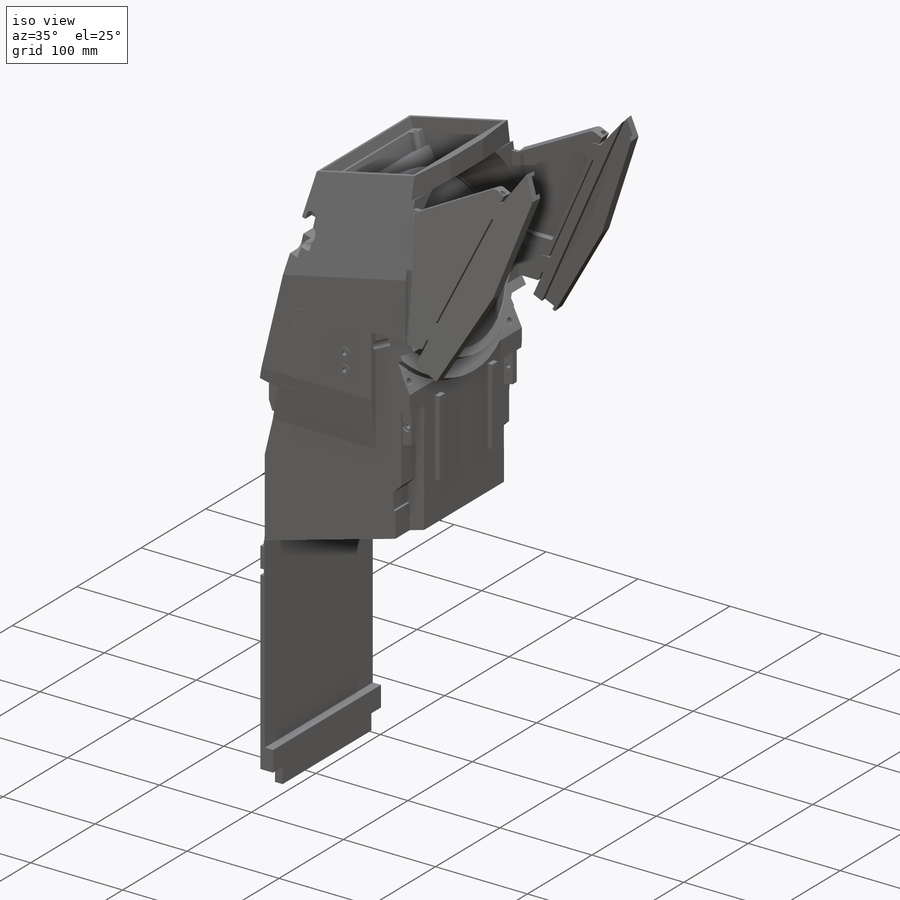
[diagram: iso view]
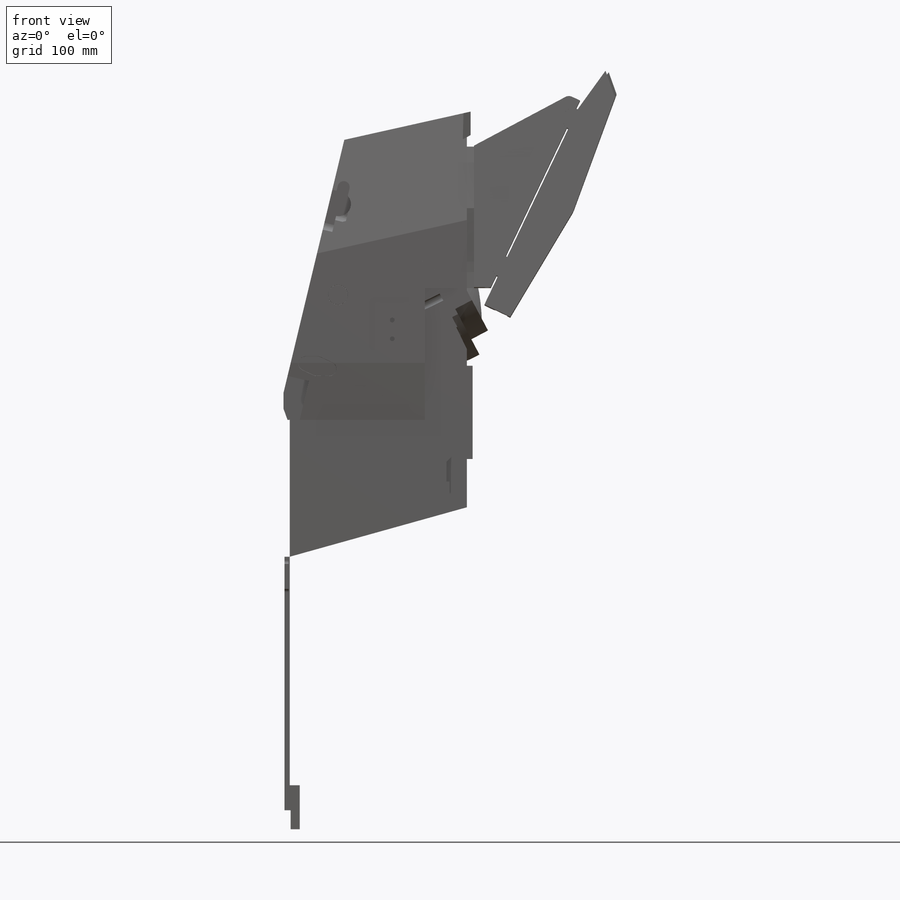
[diagram: front view]
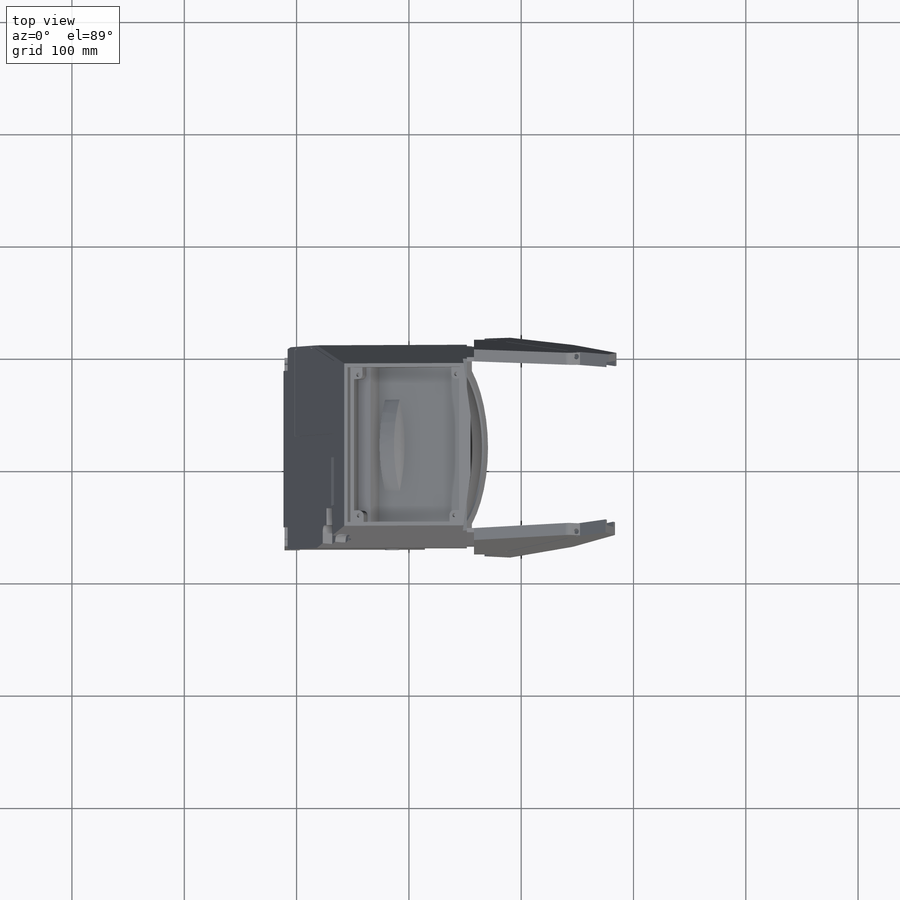
[diagram: top view]
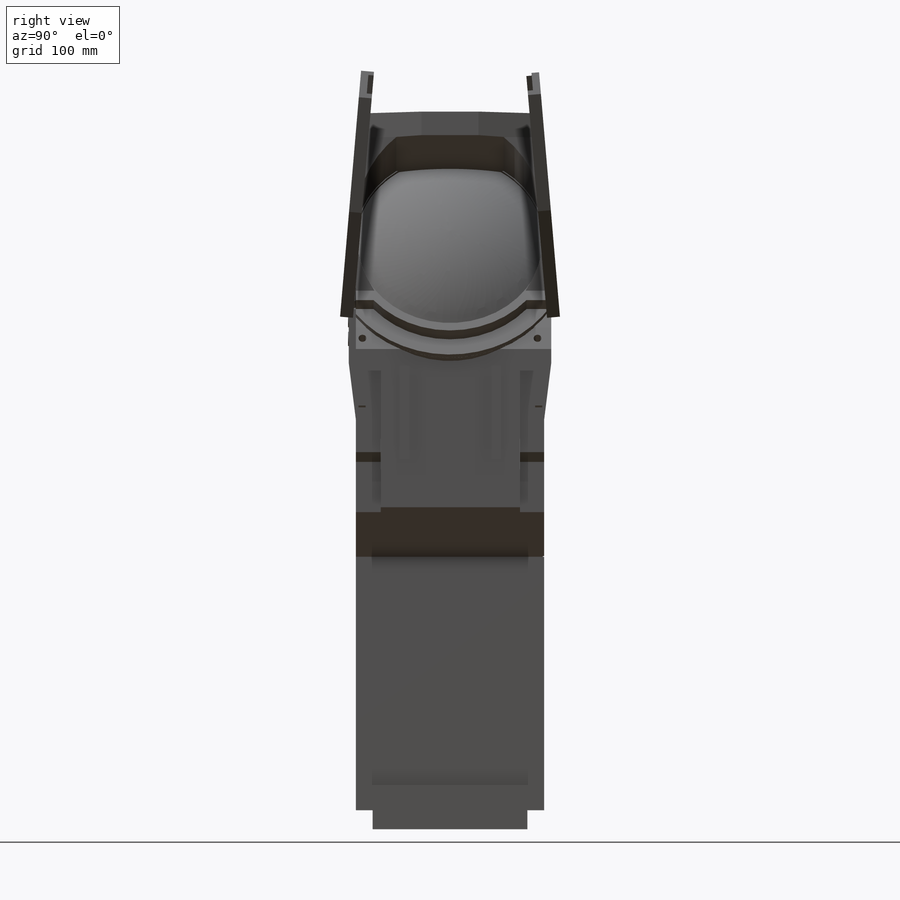
[diagram: right view]
SOLIDWORKS PART (.sldprt)
format: sldprt  version: not decoded by parser v0  size: 7,782,400 bytes
history: native  units: mm
features: sketch x101, cut_extrude x51, extrude x32, fillet x10, plane x9, mirror x2, material x1, hole x1, chamfer x1, revolve x1, cut_revolve x1 + 1 further entry (+24 scaffold rows collapsed; 3 parser-record rows omitted)
feature tree (238):
  scaffold x24  (default folders/planes/origin — collapsed)
  material  "Material <not specified>"
  plane  "Front Plane-FrontBody"
  plane  "Top Plane-FrontBody"
  plane  "Right Plane-FrontBody"
  plane  "Plane1-FrontBody"
  "FrontBody"
  parser-record x3  (decoder bookkeeping rows leaked as tree rows — omitted from the tree; the rows remain in map.json)
  sketch  "Sketch1"  dims[c1.D18=25.4mm c1.D1=122.8598mm c1.D2=2.0447mm c1.D3=326.39mm c2.D3=165.0deg c2.D4=10.6172mm c2.D5=13.9192mm c2.D6=5.6388mm c2.D7=193.3702mm c2.D8=~47.012263mm c3.D8=135.0deg c3.D10=250.825mm c3.D11=8.5725mm c3.D12=250.825mm c4.D10=250.825mm c4.D11=8.5725mm c4.D12=36.7538mm c4.D13=~35.100225mm c4.D9=250.5202mm c5.D10=~53.03878mm c5.D9=67.6148mm c6.D10=~234.639521mm c6.D8=~234.639521mm c7.D10=36.7538mm c8.D10=135.0deg c8.D8=36.7538mm c9.D8=135.0deg c9.D3=250.19mm c9.D10=12.7mm c9.D14=~50.620691mm c10.D14=~164.824219deg c11.D14=~50.620691mm c12.D14=~164.824219deg c13.D14=~121.887322mm c13.D9=67.6148mm c14.D14=~171.625109mm c14.D8=~171.625109mm c15.D14=36.7538mm c16.D14=135.0deg c17.D14=~156.596176mm c17.D8=~121.887322mm c17.D3=225.806mm c18.D8=91.567mm c18.D9=~121.887322mm c18.D10=168.4274mm c18.D13=~189.277231mm c19.D10=141.3256mm c19.D13=~192.084291mm c19.D7=36.7538mm c20.D7=~131.677789deg c21.D7=~55.421677mm c21.D8=91.567mm c21.D3=187.1218mm c22.D7=192.4812mm c22.D8=105.8672mm c22.D13=38.1mm c22.D14=316.5856mm c22.D15=169.0243mm c22.D16=~175.917547mm c23.D15=175.26mm c23.D16=155.321mm c23.D18=~31.095414mm c23.D8=33.8201mm c24.D18=~280.816641mm c24.D10=279.4mm c25.D18=~99.190486mm c25.D3=107.061mm c25.D10=41.7576mm c25.D19=100.076mm c25.D20=117.2845mm c25.D9=148.59mm c25.D13=148.844mm c25.D17=50.8mm c26.D10=2.54mm]
  sketch  "Sketch2"  dims[c1.D2=~85.858296mm c2.D2=135.0deg c2.D3=15.24mm c2.D5=17.4752mm c2.D1=6.1468mm c2.D4=2.54mm]
  extrude  "Extrude2"  [1 undecoded]
  sketch  "Sketch4"  dims[D1=50.8mm D2=98.0948mm]
  plane  "Plane1"
  sketch  "Sketch5"  dims[D1=73.025mm D2=73.025mm]
  plane  "Plane ICP Front"
  sketch  "Sketch7"
  sketch  "Sketch8"  dims[D1=90.17mm D2=90.17mm]
  sketch  "Sketch9"
  extrude  "Extrude3"  [1 undecoded]
  sketch  "Sketch11"
  cut_extrude  "Extrude4"  [1 undecoded]
  sketch  "Sketch14"  dims[D1=0.0mm]
  extrude  "Extrude5"  [1 undecoded]
  sketch  "Sketch17"  dims[D1=0.0mm]
  extrude  "Extrude8"  [1 undecoded]
  sketch  "Sketch18"  dims[D1=143.51mm]
  plane  "Plane4"
  sketch  "Sketch129"
  cut_extrude  "Extrude114"  [1 undecoded]
  sketch  "Sketch19"
  sketch  "Sketch21"  dims[D1=38.1mm D2=19.5453mm D3=73.66mm]
  cut_extrude  "Extrude11"  Depth=14.3383mm
  sketch  "Sketch22"  dims[D1=0.0mm]
  cut_extrude  "Extrude13"  Depth=14.3383mm
  sketch  "Sketch23"  dims[D1=36.7665mm D2=12.7mm]
  cut_extrude  "Extrude14"  [1 undecoded]
  sketch  "Sketch24"  dims[c1.D4=12.7mm c1.D5=12.7mm c1.D2=~27.485314mm c2.D2=~70.422828deg c3.D2=135.2931mm c3.D3=151.9682mm c4.D2=135.2931mm c4.D3=151.9682mm c4.D1=29.083mm]
  extrude  "Extrude15"  Depth=0.6223mm
  sketch  "Sketch25"  dims[D1=4.2672mm]
  cut_extrude  "Extrude16"  Depth=12.7mm
  sketch  "Sketch26"  dims[c1.D3=17.6784mm c1.D2=114.7572mm c1.D4=~114.757384mm c1.D5=~90.089159mm c2.D2=114.7572mm c2.D1=26.67mm]
  cut_extrude  "Extrude17"  Depth=3.175mm
  fillet  "Fillet1"  Radius=0.198437mm
  sketch  "Sketch27"  dims[D1=0.0mm]
  extrude  "Extrude18"  [1 undecoded]
  fillet  "Fillet2"  Radius=0.198437mm
  sketch  "Sketch30"  dims[c1.D2=36.5252mm c1.D3=6.35mm c1.D1=6.35mm c2.D3=15.875mm c2.D1=15.7099mm]
  cut_extrude  "Extrude20"  Depth=8.763mm
  sketch  "Sketch32"  dims[D1=14.9733mm D2=22.225mm]
  cut_extrude  "Extrude21"  [1 undecoded]
  sketch  "Sketch33"  dims[D1=8.763mm]
  cut_extrude  "Extrude22"  [1 undecoded]
  sketch  "Sketch34"  dims[c1.D3=2.032mm c1.D1=2.032mm c2.D3=3.937mm c2.D1=3.937mm c2.D2=10.7188mm c3.D3=10.7188mm]
  cut_extrude  "Extrude23"  [1 undecoded]
  sketch  "Sketch35"  dims[c1.D2=6.35mm c1.D1=6.35mm c2.D2=14.5542mm c2.D3=10.8585mm c2.D4=~8.958814mm c2.D1=10.8585mm c3.D3=6.35mm]
  cut_extrude  "Extrude26"  Depth=9.525mm
  fillet  "Fillet3"  Radius=6.35mm
  fillet  "Fillet4"  Radius=6.35mm
  sketch  "Sketch36"  dims[c1.D5=12.7mm c1.D6=12.7mm c1.D1=14.2748mm c1.D2=34.2138mm c1.D3=~8.73125mm c1.D4=~8.73125mm c2.D6=7.1882mm]
  cut_extrude  "Extrude29"  Depth=3.175mm
  fillet  "Fillet5"  Radius=0.198437mm
  sketch  "Sketch37"  dims[D1=0.0mm]
  extrude  "Extrude33"  [1 undecoded]
  sketch  "Sketch38"  dims[D1=7.1882mm]
  cut_extrude  "Extrude34"  [1 undecoded]
  sketch  "Sketch39"  dims[c1.D1=292.1mm c1.D2=135.0772mm c1.D3=50.8mm c2.D1=12.7mm]
  cut_extrude  "Extrude35"  Depth=4.2672mm
  sketch  "Sketch42"  dims[D2=24.765mm D1=0.0mm]
  extrude  "Extrude36"  Depth=1.9558mm
  sketch  "Sketch43"  dims[D1=43.18mm]
  hole  "CSK for #2 Flat Head Machine Screw (100)1"  Diameter=2.4384mm Depth=26.162mm
  sketch  "3DSketch1"
  sketch  "Sketch45"  dims[hole-wizard template sketch: 39 standard entries collapsed; hole parameters kept: c13.Hole Dia.=2.4384mm c13.Hole Depth=26.162mm c13.Near C'Sink Dia.=4.3688mm c13.D4=~33.297463mm c13.Near C'Sink Angle=100.0deg c14.D5=~14.816244mm c14.Drill Angle=118.0deg]
  sketch  "Sketch46"  dims[c1.D1=7.8232mm c1.D2=~23.519529mm c2.D2=84.75deg c2.D3=77.597mm c2.D1=43.2816mm c2.D4=25.8318mm]
  cut_extrude  "Extrude37"  Depth=1.27mm
  sketch  "Sketch47"  dims[D1=22.4536mm D2=135.2677mm D3=0.508mm]
  cut_extrude  "Extrude38"  Depth=1.27mm
  sketch  "Sketch48"  dims[c1.D2=25.4mm c1.D1=~6.438341mm c2.D1=155.2deg]
  cut_extrude  "Extrude39"  Depth=1.27mm
  sketch  "Sketch49"  dims[c1.D5=149.1742mm c1.D1=2.032mm c1.D2=78.105mm c1.D3=2.032mm c1.D4=5.715mm c2.D1=2.032mm c2.D2=3.3782mm]
  cut_extrude  "Extrude40"  Depth=1.27mm
  fillet  "Fillet6"  Radius=0.3175mm
  fillet  "Fillet7"  Radius=1.5875mm
  sketch  "Sketch51"  dims[D1=0.508mm]
  extrude  "Extrude42"  [1 undecoded]
  sketch  "Sketch52"  dims[D1=0.508mm]
  extrude  "Extrude43"  [1 undecoded]
  sketch  "Sketch53"  dims[D1=0.0mm D2=0.508mm D3=0.508mm]
  extrude  "Extrude44"  [1 undecoded]
  sketch  "Sketch54"  dims[D1=0.508mm]
  extrude  "Extrude49"  [1 undecoded]
  sketch  "Sketch58"  dims[c1.D1=~27.477936mm c2.D1=135.0deg c3.D1=~27.477936mm c4.D1=20.0deg c5.D1=~31.182649mm c6.D1=~179.848014deg c7.D1=~6.442859mm c8.D1=20.0deg]
  sketch  "Sketch57"  dims[D1=~1.86436mm D2=43.18mm D3=10.16mm]
  cut_extrude  "Extrude50"  [1 undecoded]
  sketch  "Sketch59"  dims[D1=10.16mm]
  sketch  "Sketch66"  dims[D1=62.0014mm D2=62.0014mm]
  extrude  "Extrude61"  [1 undecoded]
  sketch  "Sketch67"  dims[D1=0.0mm]
  extrude  "Extrude62"  Depth=4.445mm
  sketch  "Sketch82"  dims[D1=~5.99948mm]
  extrude  "Extrude76"  [1 undecoded]
  sketch  "Sketch84"  dims[D1=12.7mm]
  cut_extrude  "Extrude77"  [1 undecoded]
  sketch  "Sketch150"  dims[D3=17.3482mm D2=3.175mm D1=26.3144mm]
  cut_extrude  "Extrude136"  [1 undecoded]
  fillet  "Fillet9"  Radius=0.198437mm
  sketch  "Sketch152"  dims[D1=0.0mm]
  extrude  "Extrude139"  [1 undecoded]
  fillet  "Fillet10"  Radius=0.198437mm
  sketch  "Sketch60"  dims[D1=5.3594mm]
  extrude  "Middle Section Main Body"  [1 undecoded]
  sketch  "Sketch61"  dims[c1.D1=0.0mm c1.D2=12.7mm c1.D3=12.7mm c2.D1=12.7mm]
  cut_extrude  "Extrude54"  [1 undecoded]
  sketch  "Sketch64"  dims[D1=12.7mm]
  cut_extrude  "Extrude59"  [1 undecoded]
  sketch  "Sketch62"  dims[D1=0.0mm]
  cut_extrude  "Extrude56"  [1 undecoded]
  sketch  "Sketch63"
  cut_extrude  "Extrude58"  [1 undecoded]
  sketch  "Sketch65"  dims[D1=0.0mm]
  cut_extrude  "Extrude60"  [1 undecoded]
  sketch  "Sketch69"  dims[D1=19.05mm]
  extrude  "Extrude65"  [1 undecoded]
  sketch  "Sketch72"  dims[D1=0.0mm]
  cut_extrude  "Extrude66"  [1 undecoded]
  sketch  "Sketch73"  dims[c1.D1=150.9522mm c1.D3=6.35mm c1.D4=6.35mm c2.D1=0.0mm c2.D2=~61.80455mm c2.D3=~61.80455mm c2.D4=12.446mm c2.D5=6.35mm c2.D6=25.4mm]
  extrude  "Extrude67"  [1 undecoded]
  sketch  "Sketch74"
  extrude  "Extrude68"  [1 undecoded]
  chamfer  "Chamfer1"  Distance=2.54mm Angle=80deg
  sketch  "Sketch75"  dims[D2=4.445mm D1=14.6812mm]
  cut_extrude  "Extrude69"  [1 undecoded]
  sketch  "Sketch76"  dims[D1=8.6868mm]
  cut_extrude  "Extrude70"  Depth=1.6383mm
  sketch  "Sketch77"
  cut_extrude  "Extrude71"  [1 undecoded]
  sketch  "Sketch78"
  cut_extrude  "Extrude72"  Depth=1.6383mm
  sketch  "Sketch79"  dims[D2=22.6568mm D1=9.525mm]
  extrude  "Extrude73"  [1 undecoded]
  sketch  "Sketch80"  dims[c1.D1=9.1694mm c1.D5=8.636mm c2.D1=36.5633mm c2.D2=36.5633mm c2.D3=8.636mm c2.D4=8.636mm c3.D1=9.1694mm c3.D3=82.9945mm]
  extrude  "Extrude74"  Depth=5.08mm
  sketch  "Sketch81"  dims[D3=6.985mm D1=10.668mm D2=5.8674mm D4=48.006mm]
  cut_extrude  "Extrude75"  [1 undecoded]
  sketch  "Sketch86"  dims[D1=181.4322mm]
  extrude  "TopSection Body"  Depth=5.842mm
  sketch  "Sketch87"  dims[D1=15.3543mm D2=7.5692mm]
  extrude  "Extrude79"  Depth=16.8148mm
  sketch  "Sketch89"
  plane  "Center Longiitude Plane of Lens"
  sketch  "Sketch90"  dims[D1=2.1336mm D2=20.2438mm]
  sketch  "Sketch91"  dims[c1.D2=14.5796mm c1.D1=0.9144mm c2.D2=14.5669mm c2.D3=133.35mm c2.D4=25.4mm c2.D5=25.4mm]
  extrude  "Extrude80"  [1 undecoded]
  sketch  "Sketch93"  dims[D1=25.4mm D2=50.8mm]
  cut_extrude  "Extrude81"  [1 undecoded]
  sketch  "Sketch94"  dims[c1.D1=50.8mm c1.D2=25.4mm c1.D3=25.4mm c2.D1=50.8mm]
  cut_extrude  "Extrude83"  [1 undecoded]
  sketch  "Sketch95"  dims[D1=25.4mm]
  cut_extrude  "Extrude84"  [1 undecoded]
  revolve  "Revolve1"  Angle=360deg
  sketch  "Sketch99"
  extrude  "Extrude85"  [1 undecoded]
  sketch  "Sketch108"  dims[D1=9.525mm]
  cut_extrude  "Extrude97"  [1 undecoded]
  sketch  "Sketch100"  dims[c1.D1=4.572mm c1.D2=148.3868mm c1.D3=169.926mm c1.D4=~7.993188mm c2.D1=4.572mm c2.D2=4.572mm c3.D1=126.0348mm]
  extrude  "Extrude86"  Depth=6.35mm
  sketch  "Sketch110"
  cut_extrude  "Extrude99"  [1 undecoded]
  sketch  "Sketch106"
  cut_extrude  "Extrude90"  [1 undecoded]
  sketch  "Sketch107"  dims[c1.D3=~189.86466mm c1.D5=~401.680812mm c1.D1=~11.629789mm c1.D2=4.572mm c2.D1=~2.211067mm c2.D3=~10.751754mm c2.D4=1.27mm c2.D2=2.2098mm]
  cut_extrude  "Extrude96"  [1 undecoded]
  sketch  "Sketch113"  dims[D1=10.7188mm]
  plane  "Plane2"
  sketch  "Sketch114"  dims[c1.D4=19.05mm c1.D5=19.05mm c1.D6=19.05mm c1.D1=14.986mm c1.D2=11.049mm c1.D3=95.6691mm c1.D8=146.05mm c2.D4=1.524mm c2.D7=7.9883mm]
  extrude  "Extrude101"  [1 undecoded]
  sketch  "Sketch117"  dims[c1.D4=12.7mm c1.D5=12.7mm c2.D5=30.0deg c2.D1=2.54mm c2.D2=3.683mm c2.D3=25.4mm c2.D6=45.72mm c2.D7=2.54mm]
  cut_extrude  "Extrude104"  Depth=6.0071mm
  sketch  "Sketch118"  dims[D2=4.8514mm D1=3.5306mm]
  cut_extrude  "Extrude105"  [1 undecoded]
  sketch  "Sketch144"  dims[D2=4.8514mm D1=3.5306mm]
  cut_extrude  "Extrude132"  [1 undecoded]
  mirror  "Mirror3"
  fillet  "Fillet8"  Radius=6.35mm
  sketch  "Sketch119"  dims[D1=0.0mm]
  cut_extrude  "Extrude106"  [1 undecoded]
  sketch  "Sketch121"  dims[D1=0.0mm]
  cut_revolve  "Cut-Revolve1"  Angle=90deg
  mirror  "Mirror6"
  sketch  "Sketch126"  dims[D1=2.54mm]
  cut_extrude  "Extrude112"  [1 undecoded]
  sketch  "Sketch131"  dims[D1=39.37mm]
  extrude  "Extrude117"  [1 undecoded]
  sketch  "Sketch132"  dims[D1=3.0734mm D2=102.5906mm D3=3.0734mm D4=68.8975mm D5=68.8975mm D6=115.2906mm D7=115.2906mm D8=25.4mm D9=25.4mm]
  sketch  "Sketch134"
  extrude  "Extrude118"  [1 undecoded]
  sketch  "Sketch135"
  cut_extrude  "Extrude119"  [1 undecoded]
  sketch  "Sketch139"
  cut_extrude  "Extrude120"  Depth=10.9728mm
  sketch  "Sketch140"  dims[c1.D9=3.6068mm c1.D1=3.6068mm c1.D2=3.302mm c2.D1=3.302mm c2.D2=3.302mm c2.D3=3.302mm c2.D4=3.302mm c3.D1=6.35mm c3.D3=6.35mm c3.D5=10.414mm c3.D6=10.414mm c3.D7=10.414mm c3.D8=10.414mm c3.D2=10.414mm c4.D3=3.302mm c4.D5=10.414mm]
  cut_extrude  "Extrude127"  Depth=2.794mm
  sketch  "Sketch141"
  cut_extrude  "Extrude129"  Depth=6.35mm
  sketch  "Sketch142"  dims[c1.D1=234.95mm c1.D2=16.4084mm c1.D3=25.4mm c1.D4=101.6mm c1.D5=7.62mm c1.D6=~65.763295mm c2.D6=45.0deg c2.D7=25.4mm c2.D8=35.56mm c2.D4=~25.580512mm c3.D4=~90.215335deg c4.D4=25.4mm c4.D7=~25.144717mm]
  extrude  "Extrude130"  Depth=11.5443mm
  sketch  "Sketch143"  dims[D1=10.0584mm D2=12.3825mm]
  cut_extrude  "Extrude131"  Depth=4.7625mm
  sketch  "Sketch147"  dims[c1.D2=16.4084mm c1.D3=25.4mm c1.D4=234.95mm c1.D5=~20.57946mm c2.D5=45.0deg c2.D6=25.4mm c2.D7=35.56mm c2.D1=1.524mm]
  extrude  "Extrude133"  Depth=11.5443mm
  sketch  "Sketch148"  dims[D1=10.0584mm D2=12.3952mm]
  cut_extrude  "Extrude135"  Depth=4.7625mm
  sketch  "Sketch149"  dims[c1.D5=25.4mm c1.D3=16.3576mm c1.D4=53.34mm c1.D2=44.704mm c1.D1=5.334mm c2.D2=44.704mm]
decode coverage: 126 of 200 modeling features carry decoded parameters; 1 rows unclassified (native names shown)
note: ~ marks probable driven/reference dimensions
note: 54 parameter values undecoded
summary: no parameter record found for 54 features
note: suppression state not decoded; provenance and decode notes live in map.json
